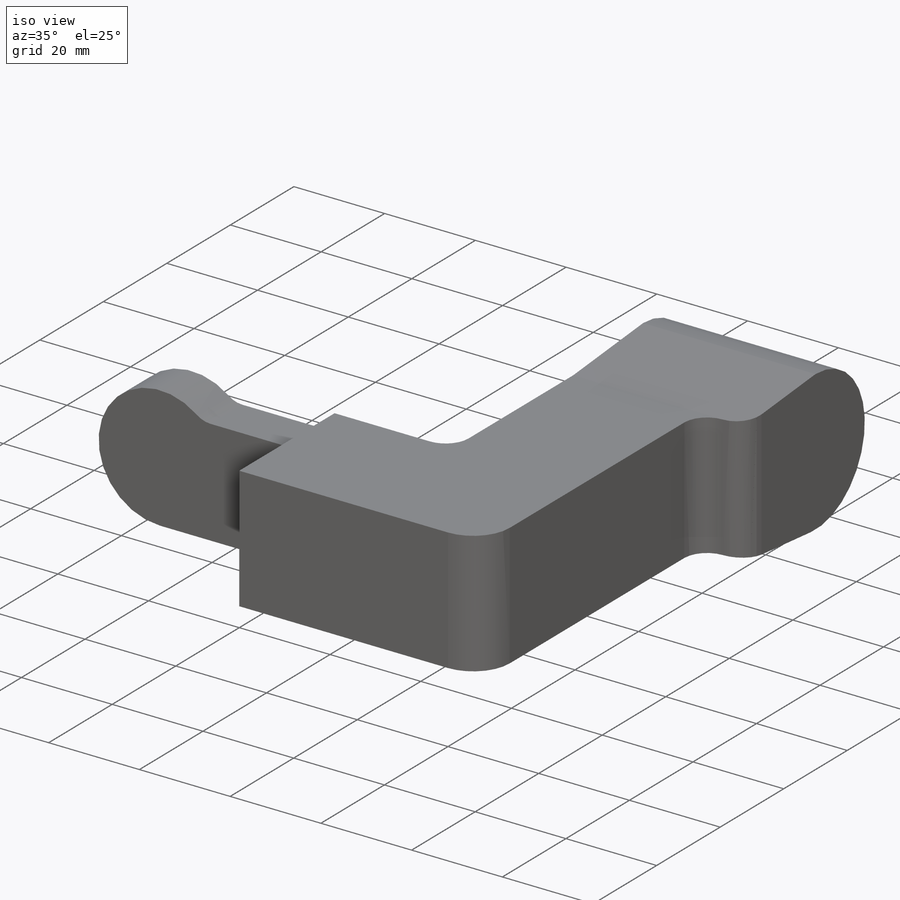
[diagram: iso view]
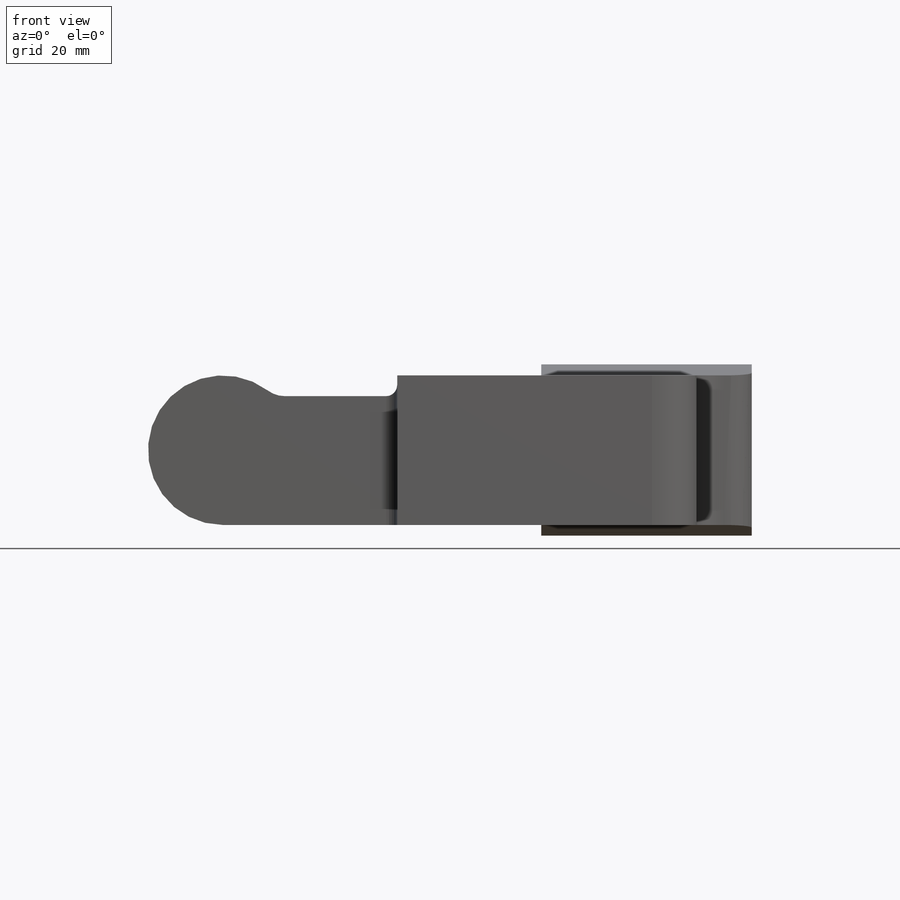
[diagram: front view]
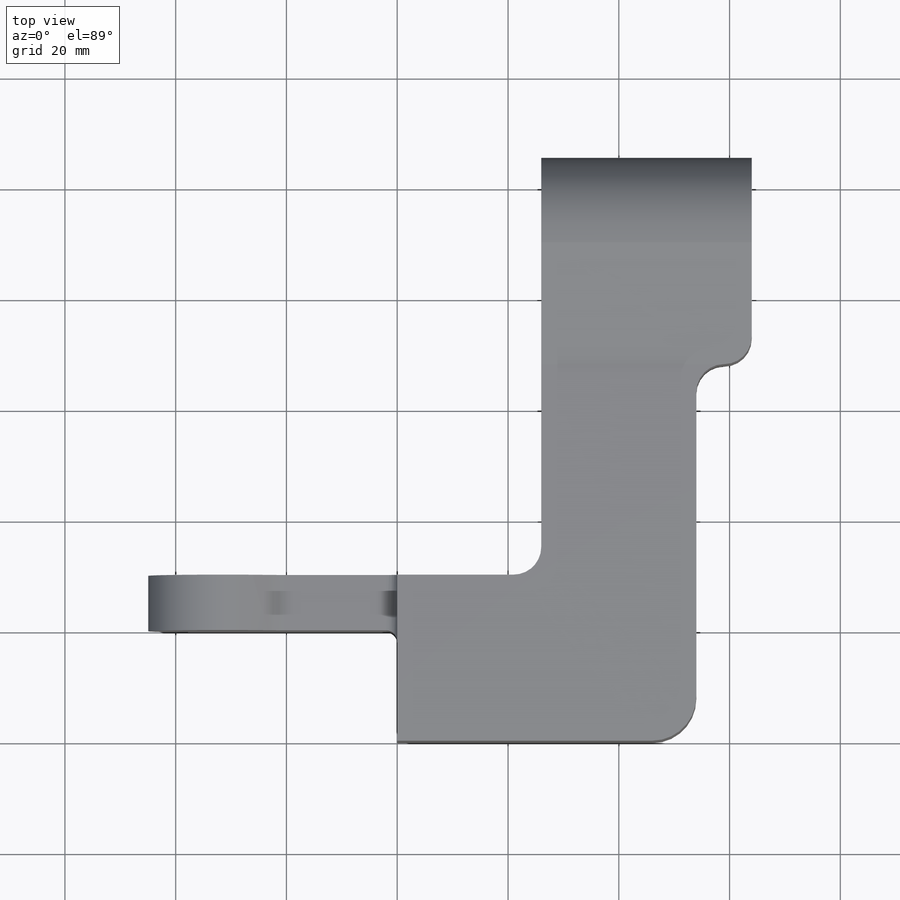
[diagram: top view]
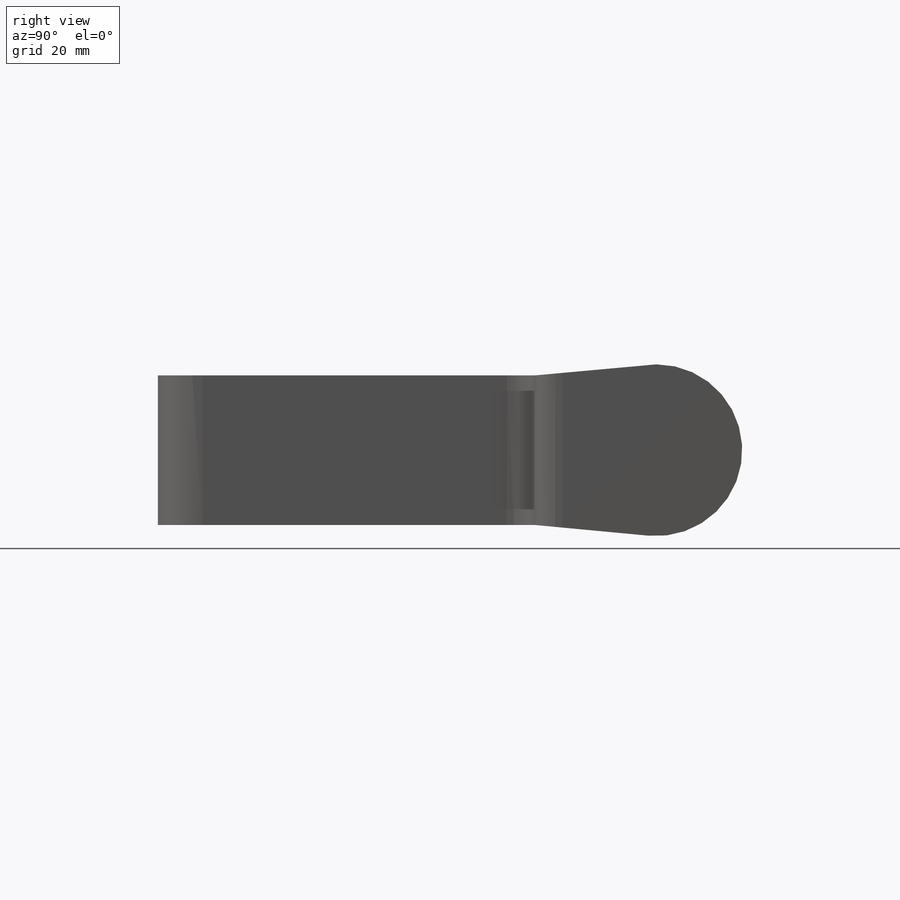
[diagram: right view]
SOLIDWORKS PART (.sldprt)
format: sldprt  version: not decoded by parser v0  size: 201,728 bytes
history: native  units: mm
features: sketch x5, extrude x3, fillet x3, plane x2, material x1 (+11 scaffold rows collapsed)
feature tree (25):
  scaffold x11  (default folders/planes/origin — collapsed)
  material  "Material <not specified>"
  sketch  "Sketch1"  dims[c1.D1=8.0mm c1.D2=5.0mm c1.D3=5.0mm c2.D1=10.0mm]
  extrude  "Boss-Extrude1"  Depth=13.5mm
  sketch  "Sketch2"  dims[c1.D1=~6.613986mm c1.D2=5.0mm c2.D1=31.5mm c2.D3=0.0mm]
  extrude  "Boss-Extrude2"  Depth=10mm
  fillet  "Fillet3"  Radius=2mm
  plane  "Plane1"
  sketch  "Sketch4"  dims[D1=~15.636179mm]
  extrude  "Boss-Extrude3"  Depth=38mm
  fillet  "Fillet4"  Radius=5mm
  fillet  "Fillet5"  Radius=5mm
  sketch  "Sketch6"
  plane  "Plane2"
  sketch  "Sketch8"
decode coverage: 9 of 11 modeling features carry decoded parameters
note: ~ marks probable driven/reference dimensions
note: suppression state not decoded; provenance and decode notes live in map.json
